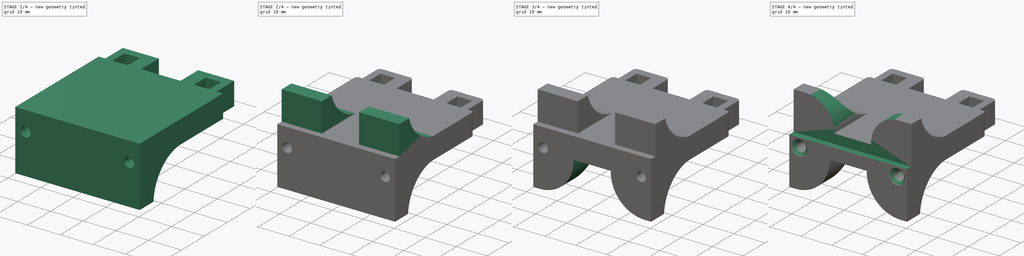
[diagram: build sequence overview — one tinted view per stage of 4, left to right]
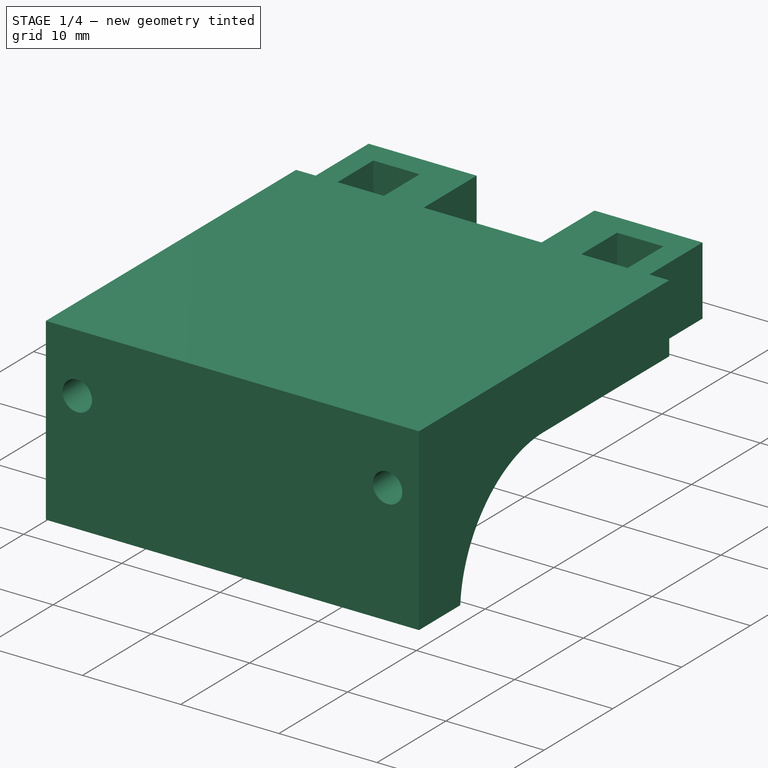
[diagram: stage 1 of 4 — iso view after this stage's code; geometry added in this stage tinted green]
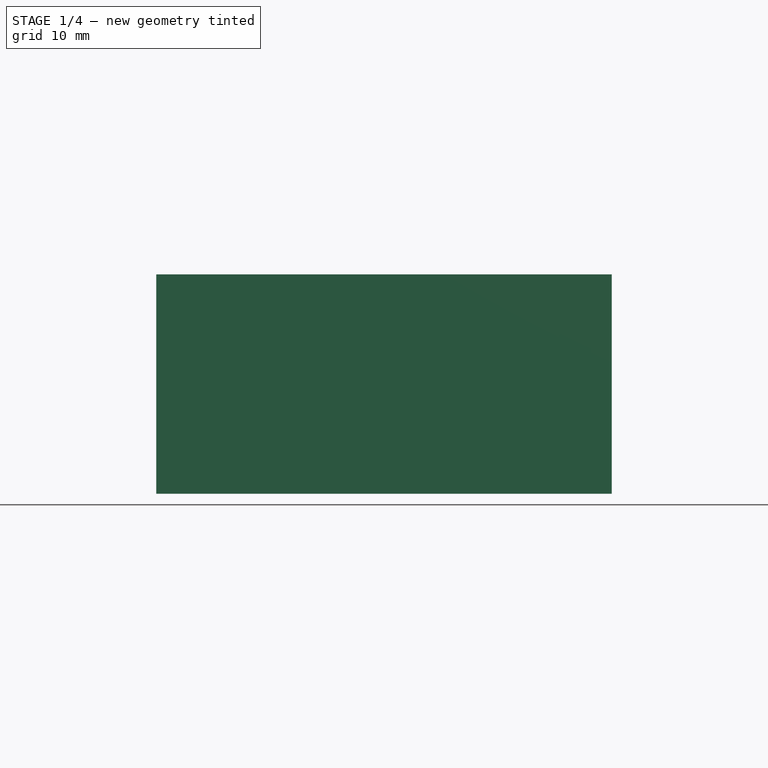
[diagram: stage 1 of 4 — front view after this stage's code; geometry added in this stage tinted green]
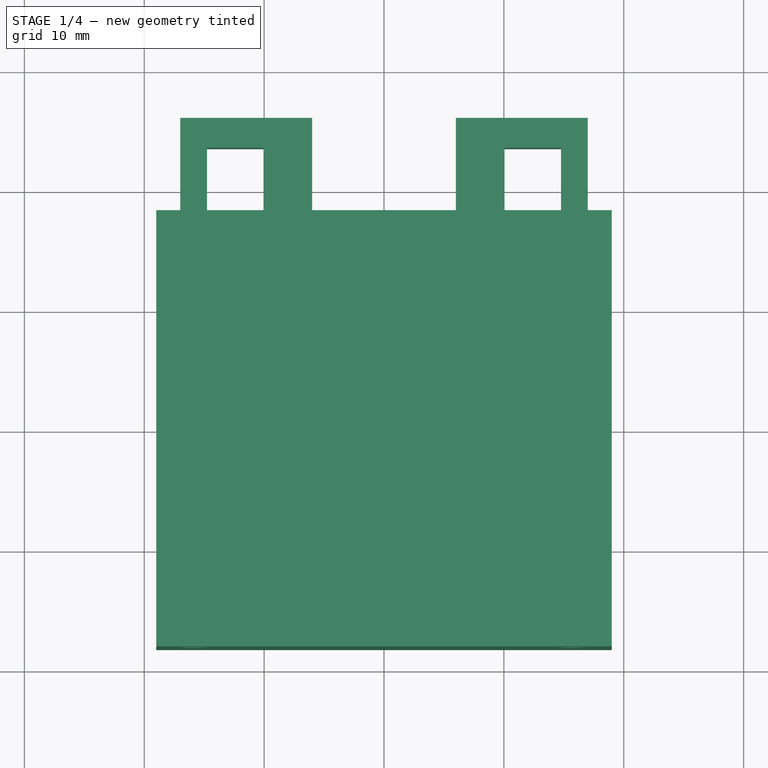
[diagram: stage 1 of 4 — top view after this stage's code; geometry added in this stage tinted green]
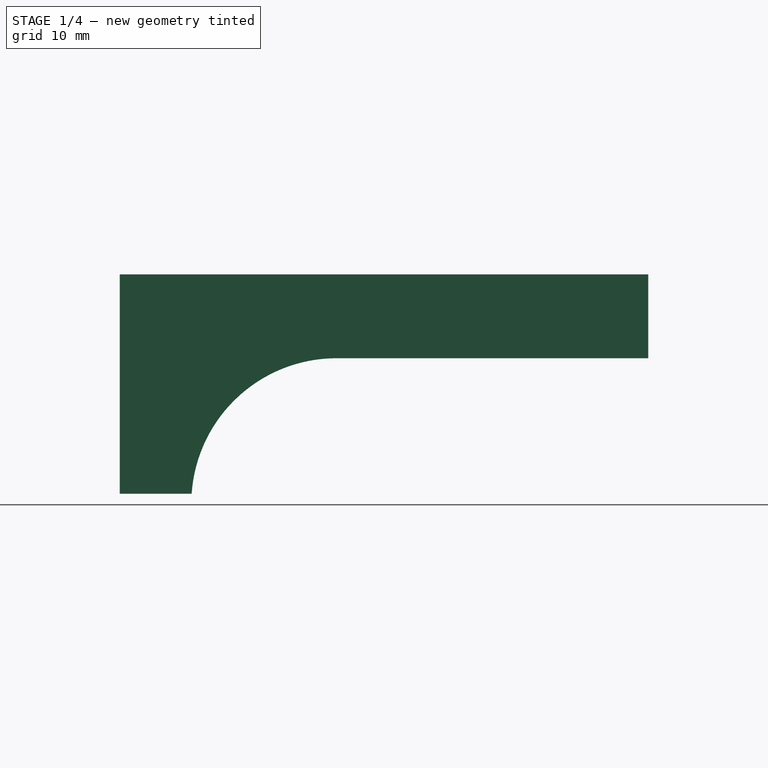
[diagram: stage 1 of 4 — right view after this stage's code; geometry added in this stage tinted green]
FCSTD DOCUMENT  (FreeCAD 1.1R43135 (Git))
Label: k1 beacon rear mount v2
License: All rights reserved
LicenseURL: https://en.wikipedia.org/wiki/All_rights_reserved
objects: Sketcher::SketchObject×6, Part::Feature×5, PartDesign::Pocket×4, App::Point×3, PartDesign::Fillet×3, PartDesign::Pad×2, App::Part×2, PartDesign::SubShapeBinder×1, PartDesign::Mirrored×1, PartDesign::Chamfer×1, PartDesign::Body×1
note: 51 computed .brp shape members not serialized (recipe doc carries the construction recipe); baked Part::Feature solids carry a one-line shape summary decoded from their .brp

FEATURE [Sketcher::SketchObject] Sketch
  ArcFitTolerance = 0
  AttachmentSupport = -> [XY_Plane]
  ExternalTypes = [0]
  FullyConstrained = false
  MakeInternals = false
  MapMode = 5
  sketch-geometry (20):
    g0: LineSegment StartX=-19 StartY=18.195 StartZ=0 EndX=-19 EndY=-18.195 EndZ=0
    g1: LineSegment StartX=-19 StartY=-18.195 StartZ=0 EndX=19 EndY=-18.195 EndZ=0
    g2: LineSegment StartX=19 StartY=-18.195 StartZ=0 EndX=19 EndY=18.195 EndZ=0
    g3: LineSegment StartX=19 StartY=18.195 StartZ=0 EndX=17 EndY=18.195 EndZ=0
    g4: LineSegment StartX=-6 StartY=18.195 StartZ=0 EndX=-6 EndY=25.895 EndZ=0
    g5: LineSegment StartX=-6 StartY=25.895 StartZ=0 EndX=-17 EndY=25.895 EndZ=0
    g6: LineSegment StartX=-17 StartY=25.895 StartZ=0 EndX=-17 EndY=18.195 EndZ=0
    g7: LineSegment StartX=17 StartY=18.195 StartZ=0 EndX=17 EndY=25.895 EndZ=0
    g8: LineSegment StartX=17 StartY=25.895 StartZ=0 EndX=6 EndY=25.895 EndZ=0
    g9: LineSegment StartX=6 StartY=25.895 StartZ=0 EndX=6 EndY=18.195 EndZ=0
    g10: LineSegment StartX=6 StartY=18.195 StartZ=0 EndX=-6 EndY=18.195 EndZ=0
    g11: LineSegment StartX=-17 StartY=18.195 StartZ=0 EndX=-19 EndY=18.195 EndZ=0
    g12: LineSegment StartX=-14.77 StartY=23.395 StartZ=0 EndX=-14.77 EndY=18.195 EndZ=0
    g13: LineSegment StartX=-14.77 StartY=18.195 StartZ=0 EndX=-10.05 EndY=18.195 EndZ=0
    g14: LineSegment StartX=-10.05 StartY=18.195 StartZ=0 EndX=-10.05 EndY=23.395 EndZ=0
    g15: LineSegment StartX=-10.05 StartY=23.395 StartZ=0 EndX=-14.77 EndY=23.395 EndZ=0
    g16: LineSegment StartX=10.05 StartY=23.395 StartZ=0 EndX=10.05 EndY=18.195 EndZ=0
    g17: LineSegment StartX=10.05 StartY=18.195 StartZ=0 EndX=14.77 EndY=18.195 EndZ=0
    g18: LineSegment StartX=14.77 StartY=18.195 StartZ=0 EndX=14.77 EndY=23.395 EndZ=0
    g19: LineSegment StartX=14.77 StartY=23.395 StartZ=0 EndX=10.05 EndY=23.395 EndZ=0
  constraints (59):
    c: Coincident(g0,g1)
    c: Coincident(g1,g2)
    c: Coincident(g2,g3)
    c: Coincident(g11,g0)
    c: Vertical(g0)
    c: Vertical(g2)
    c: Horizontal(g1)
    c: DistanceY(g2,g2) = 36.39
    c: DistanceX(g1,g1) = 38
    c: Symmetric(g1,g0,g-1)
    c: Coincident(g4,g5)
    c: Coincident(g5,g6)
    c: Vertical(g4)
    c: Vertical(g6)
    c: PointOnObject(g6,g11)
    c: Coincident(g7,g8)
    c: Coincident(g8,g9)
    c: Vertical(g7)
    c: Vertical(g9)
    c: PointOnObject(g9,g10)
    c: DistanceX(g8,g8) = 11
    c: Equal(g8,g5)
    c: DistanceX(g4,g9) = 12
    c: Distance(g7,g2) = 2
    c: PointOnObject(g11,g6)
    c: Coincident(g4,g10)
    c: Horizontal(g10)
    c: Horizontal(g11)
    c: Horizontal(g8)
    c: Horizontal(g5)
    c: Horizontal(g4,g8)
    c: Horizontal(g9,g3)
    c: Horizontal(g3,g2)
    c: Horizontal(g4,g6)
    c: Coincident(g12,g13)
    c: Coincident(g13,g14)
    c: Coincident(g14,g15)
    c: Coincident(g15,g12)
    c: Vertical(g12)
    c: Vertical(g14)
    c: Horizontal(g13)
    c: Horizontal(g15)
    c: Coincident(g16,g17)
    c: Coincident(g17,g18)
    c: Coincident(g18,g19)
    c: Coincident(g19,g16)
    c: Vertical(g16)
    c: Vertical(g18)
    c: Horizontal(g17)
    c: Horizontal(g19)
    c: DistanceY(g9,g16) = 0
    c: Equal(g13,g19)
    c: Distance(g19,g19) = 4.72
    c: Equal(g16,g14)
    c: DistanceY(g14,g14) = 5.2
    c: DistanceX(g13,g16) = 20.1
    c: Symmetric(g13,g16,g-2)
    c: Coincident(g3,g7)
    c: DistanceY(g6,g6) = 7.7
FEATURE [PartDesign::Pad] Pad
  Direction = (0,0,1)
  Length = 18.3
  Length2 = 10
  Profile = -> Sketch
  ReferenceAxis = -> Sketch [N_Axis]
  Refine = true
  SideType = 0
  Suppressed = false
  Type = 0
  Type2 = 0
FEATURE [Sketcher::SketchObject] Sketch001
  ArcFitTolerance = 0
  AttachmentSupport = -> [Pad]
  ExternalGeometry = -> [Pad]
  ExternalTypes = [0]
  FullyConstrained = true
  MakeInternals = false
  MapMode = 5
  Placement = pos=(19,0,0) rot=(0.57735,0.57735,0.57735;2.0944rad)
  expr: Constraints[2] = Pad.Length - 7 mm
  sketch-geometry (4):
    g0: LineSegment StartX=25.895 StartY=11.3 StartZ=0 EndX=25.895 EndY=0 EndZ=0
    g1: LineSegment StartX=25.895 StartY=11.3 StartZ=0 EndX=-0.105 EndY=11.3 EndZ=0
    g2: LineSegment StartX=25.895 StartY=0 StartZ=0 EndX=-12.195 EndY=-3e-16 EndZ=0
    g3: ArcOfCircle CenterX=-0.105 CenterY=-0.817615 CenterZ=0 NormalX=0 NormalY=0 NormalZ=1 AngleXU=0 Radius=12.1176 StartAngle=1.5708 EndAngle=3.07407
  constraints (11):
    c: PointOnObject(g0,g-3)
    c: Coincident(g0,g-3)
    c: DistanceY(g0,g0) = 11.3
    c: Coincident(g1,g0)
    c: Horizontal(g1)
    c: DistanceX(g1,g1) = 26
    c: Coincident(g2,g0)
    c: Coincident(g3,g2)
    c: Tangent(g3,g1) = -1.5708
    c: PointOnObject(g2,g-1)
    c: DistanceX(g-5,g2) = 6
FEATURE [PartDesign::Pocket] Pocket
  BaseFeature = -> Pad
  Direction = (-1,0,0)
  Length = 5
  Length2 = 5
  Profile = -> Sketch001
  ReferenceAxis = -> Sketch001 [N_Axis]
  Refine = true
  SideType = 0
  Suppressed = false
  Type = 1
  Type2 = 0
FEATURE [Part::Feature] Part__Feature  label="BeaconG_LP"
  shape: bbox 17 x 17 x 2.6 mm, 4 faces (baked)
FEATURE [Part::Feature] Part__Feature001  label="BeaconG_LP001"
  shape: bbox 18.75 x 18.75 x 20 mm, 4 faces (baked)
FEATURE [Part::Feature] Part__Feature002  label="BeaconG_LP002"
  shape: bbox 38 x 7.762 x 1.1 mm, 10 faces (baked)
FEATURE [Part::Feature] Part__Feature003  label="BeaconG_LP003"
  shape: bbox 38 x 27.5 x 1.611 mm, 18 faces (baked)
FEATURE [App::Part] BeaconG_LP  label="BeaconG_LP004"
  Group = -> [Part__Feature,Part__Feature001,Part__Feature002,Part__Feature003]
  Origin = -> Origin001
FEATURE [Part::Feature] Part__Feature004  label="353620450"
  Placement = pos=(4e-16,-16.1345,4.25) rot=(0,0.707107,0.707107;3.14159rad)
  shape: bbox 10.3 x 5.55 x 11.8 mm, 178 faces (baked)
FEATURE [App::Part] Beacon_Rev_H_Assm  label="Beacon Rev H Assm"
  Group = -> [BeaconG_LP,Part__Feature004]
  Origin = -> Origin002
  Placement = pos=(0,-18.25,8.75) rot=(1,0,0;4.71239rad)
FEATURE [PartDesign::SubShapeBinder] Binder
  BindCopyOnChange = 0
  BindMode = 0
  ClaimChildren = false
  Context = -> Body [Binder.]
  Fuse = false
  MakeFace = true
  OffsetFill = false
  OffsetIntersection = false
  OffsetJoinType = 0
  OffsetOpenResult = false
  PartialLoad = false
  Refine = true
  Relative = true
  Support = -> [Beacon_Rev_H_Assm]
  _Version = 2
FEATURE [Sketcher::SketchObject] Sketch002
  ArcFitTolerance = 1e-06
  AttachmentSupport = -> [Pocket]
  ExternalGeometry = -> [Binder]
  ExternalTypes = [0]
  FullyConstrained = true
  MakeInternals = false
  MapMode = 5
  Placement = pos=(0,-18.195,0) rot=(1,0,0;1.5708rad)
  sketch-geometry (2):
    g0: Circle CenterX=-15.8 CenterY=12.25 CenterZ=0 NormalX=0 NormalY=0 NormalZ=1 AngleXU=0 Radius=1.5
    g1: Circle CenterX=15.8 CenterY=12.25 CenterZ=0 NormalX=0 NormalY=0 NormalZ=1 AngleXU=0 Radius=1.5
  constraints (4):
    c: Coincident(g0,g-3)
    c: Coincident(g1,g-4)
    c: Equal(g1,g0)
    c: Diameter(g0) = 3
FEATURE [PartDesign::Pocket] Pocket001
  BaseFeature = -> Pocket
  Direction = (0,1,-2e-16)
  Length = 5
  Length2 = 5
  Profile = -> Sketch002
  ReferenceAxis = -> Sketch002 [N_Axis]
  Refine = true
  SideType = 0
  Suppressed = false
  Type = 0
  Type2 = 0
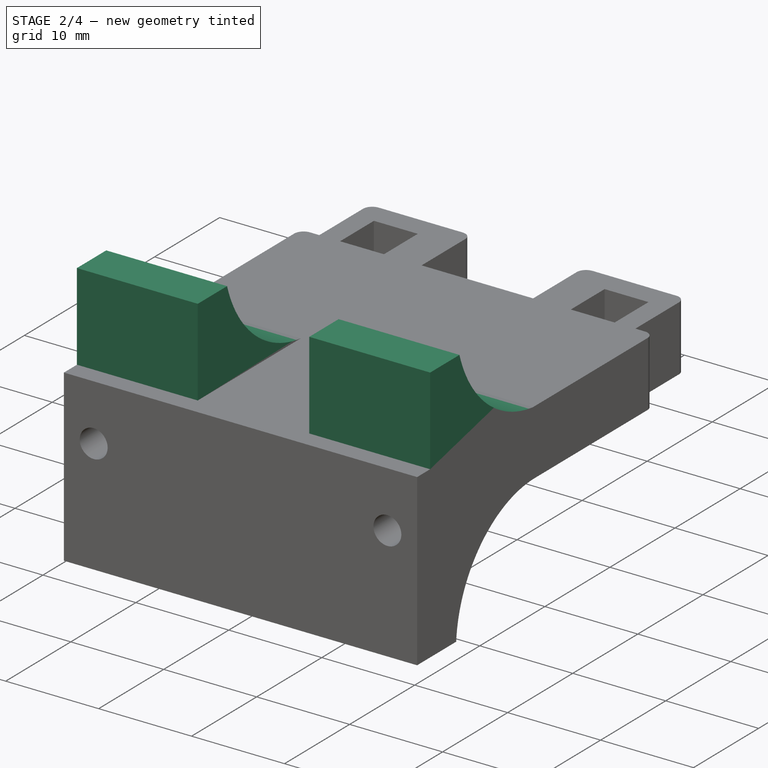
[diagram: stage 2 of 4 — iso view after this stage's code; geometry added in this stage tinted green]
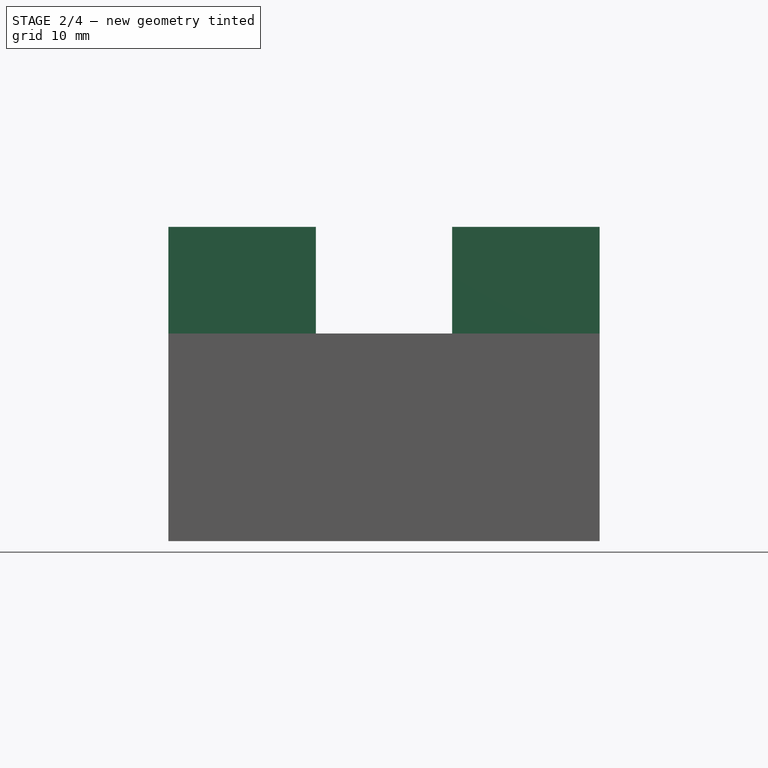
[diagram: stage 2 of 4 — front view after this stage's code; geometry added in this stage tinted green]
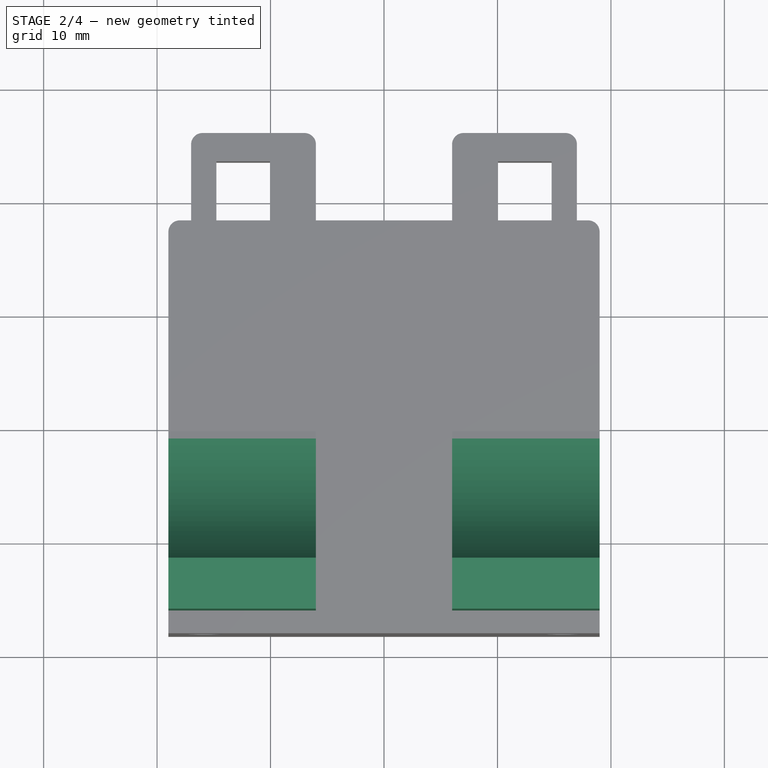
[diagram: stage 2 of 4 — top view after this stage's code; geometry added in this stage tinted green]
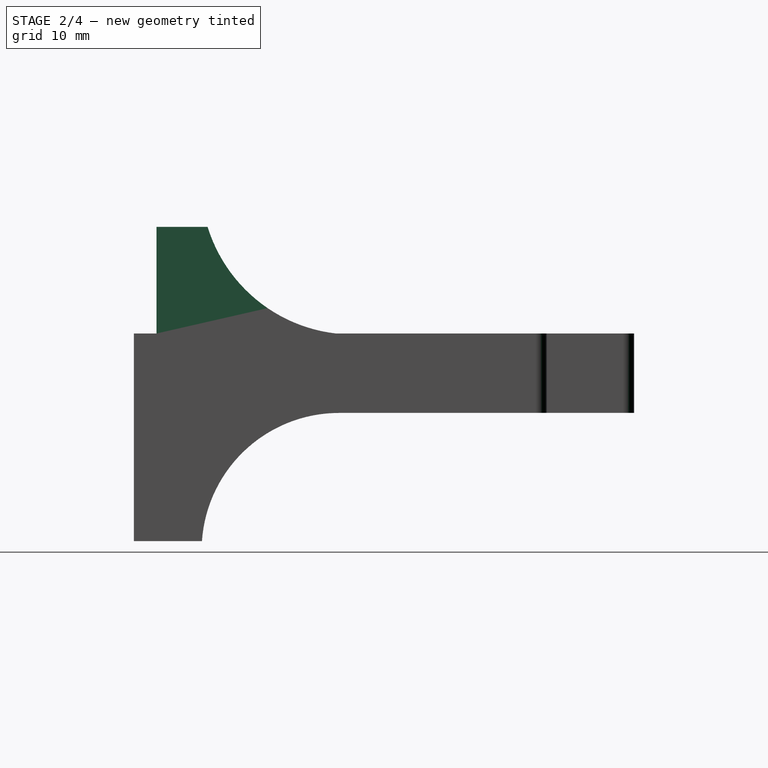
[diagram: stage 2 of 4 — right view after this stage's code; geometry added in this stage tinted green]
FEATURE [Sketcher::SketchObject] Sketch003
  ArcFitTolerance = 1e-06
  AttachmentSupport = -> [Pocket001]
  ExternalGeometry = -> [Pocket001]
  ExternalTypes = [0]
  FullyConstrained = false
  MakeInternals = false
  MapMode = 5
  Placement = pos=(-19,0,0) rot=(0.57735,-0.57735,-0.57735;2.0944rad)
  sketch-geometry (4):
    g0: LineSegment StartX=16.195 StartY=18.2694 StartZ=0 EndX=0.0935402 EndY=18.2694 EndZ=0
    g1: LineSegment StartX=16.195 StartY=18.2694 StartZ=0 EndX=16.195 EndY=27.6981 EndZ=0
    g2: LineSegment StartX=16.195 StartY=27.6981 StartZ=0 EndX=11.695 EndY=27.6981 EndZ=0
    g3: ArcOfCircle CenterX=-1.14709 CenterY=31.6477 CenterZ=0 NormalX=0 NormalY=0 NormalZ=1 AngleXU=0 Radius=13.4357 StartAngle=4.80486 EndAngle=5.98482
  constraints (9):
    c: Vertical(g1)
    c: Coincident(g2,g1)
    c: Horizontal(g2)
    c: DistanceX(g2,g2) = 4.5
    c: Coincident(g3,g2)
    c: Coincident(g3,g0)
    c: Horizontal(g0)
    c: Coincident(g1,g0)
    c: DistanceX(g0,g-4) = 2
FEATURE [PartDesign::Pad] Pad001
  BaseFeature = -> Pocket001
  Direction = (-1,0,0)
  Length = 13
  Length2 = 10
  Profile = -> Sketch003
  ReferenceAxis = -> Sketch003 [N_Axis]
  Refine = true
  Reversed = true
  SideType = 0
  Suppressed = false
  Type = 0
  Type2 = 0
FEATURE [PartDesign::Mirrored] Mirrored
  BaseFeature = -> Pad001
  MirrorPlane = -> YZ_Plane
  Originals = -> [Pad001]
  Refine = true
  Suppressed = false
  TransformMode = 0
FEATURE [App::Point] Origin003  label="Origin"
  Role = Origin
FEATURE [App::Point] Origin004  label="Origin"
  Role = Origin
FEATURE [App::Point] Origin005  label="Origin"
  Role = Origin
FEATURE [PartDesign::Fillet] Fillet
  Base = -> Mirrored [Edge40,Edge42,Edge48,Edge21,Edge25,Edge36]
  BaseFeature = -> Mirrored
  Radius = 1
  Refine = true
  SupportTransform = false
  Suppressed = false
  UseAllEdges = false
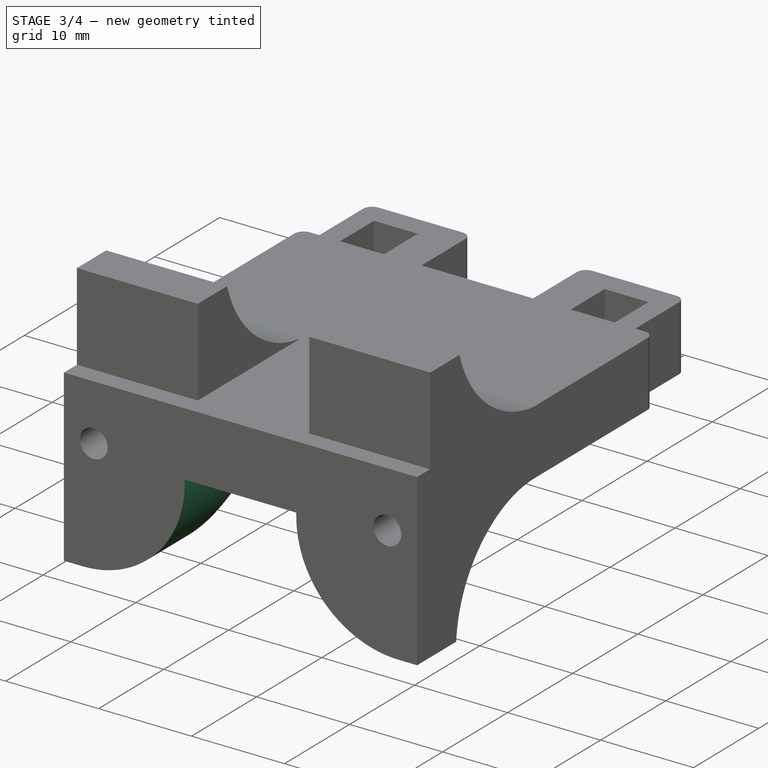
[diagram: stage 3 of 4 — iso view after this stage's code; geometry added in this stage tinted green]
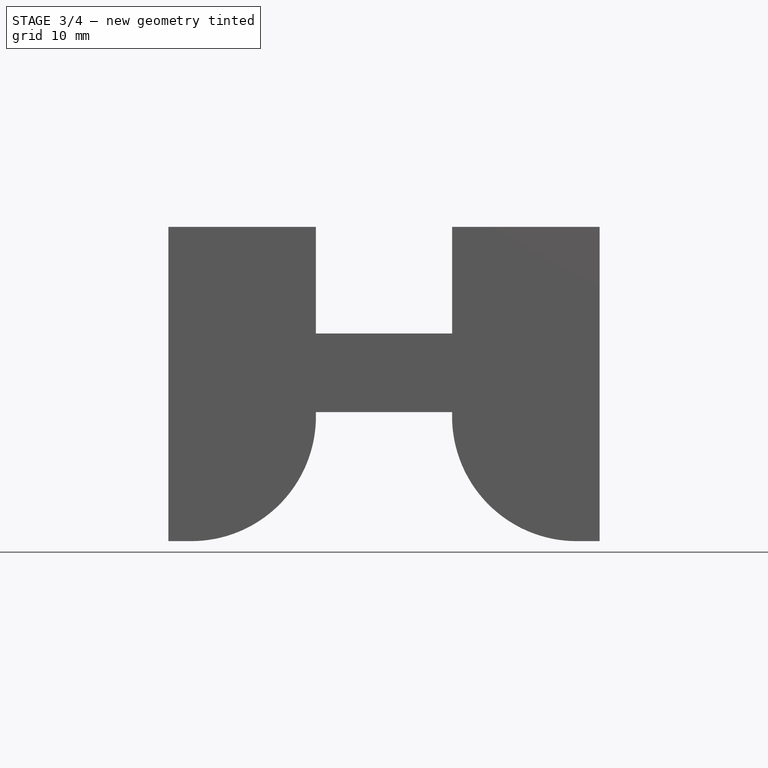
[diagram: stage 3 of 4 — front view after this stage's code; geometry added in this stage tinted green]
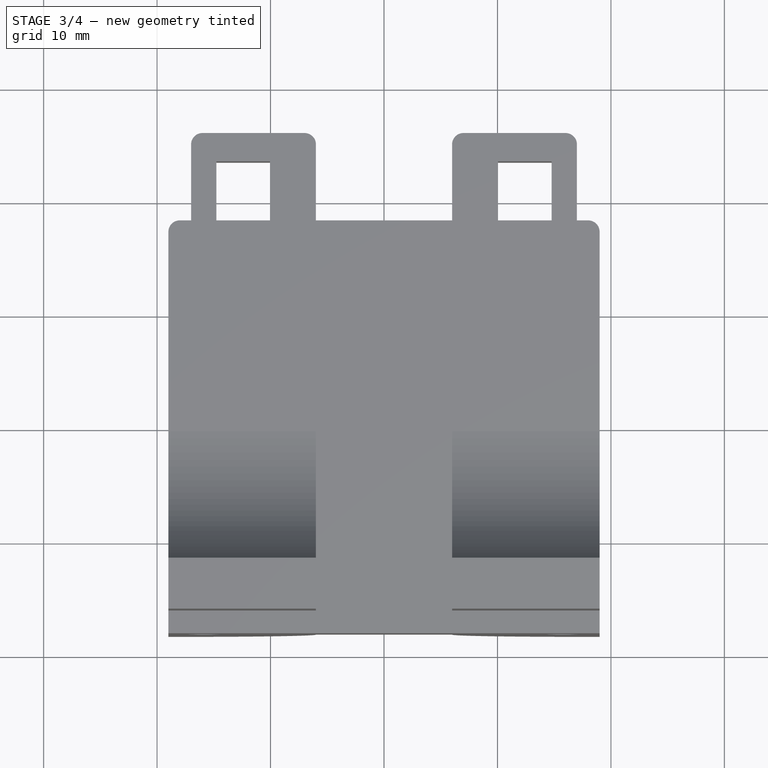
[diagram: stage 3 of 4 — top view after this stage's code; geometry added in this stage tinted green]
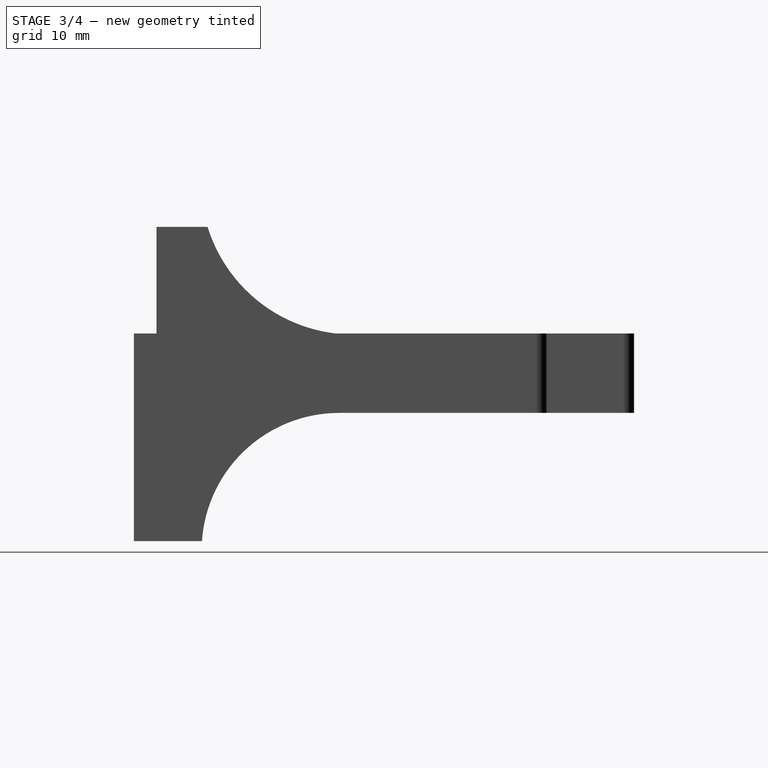
[diagram: stage 3 of 4 — right view after this stage's code; geometry added in this stage tinted green]
FEATURE [Sketcher::SketchObject] Sketch005
  ArcFitTolerance = 1e-06
  AttachmentSupport = -> [Fillet]
  ExternalGeometry = -> [Fillet]
  ExternalTypes = [0,0]
  FullyConstrained = false
  MakeInternals = false
  MapMode = 5
  Placement = pos=(0,18.195,0) rot=(0,0.707107,0.707107;3.14159rad)
  sketch-geometry (4):
    g0: LineSegment StartX=-6 StartY=0 StartZ=0 EndX=6 EndY=0 EndZ=0
    g1: LineSegment StartX=6 StartY=0 StartZ=0 EndX=6 EndY=11.3692 EndZ=0
    g2: LineSegment StartX=6 StartY=11.3692 StartZ=0 EndX=-6 EndY=11.3692 EndZ=0
    g3: LineSegment StartX=-6 StartY=11.3692 StartZ=0 EndX=-6 EndY=0 EndZ=0
  constraints (11):
    c: Coincident(g0,g1)
    c: Coincident(g1,g2)
    c: Coincident(g2,g3)
    c: Coincident(g3,g0)
    c: Horizontal(g0)
    c: Horizontal(g2)
    c: Vertical(g1)
    c: Vertical(g3)
    c: PointOnObject(g0,g-1)
    c: Vertical(g-3,g2)
    c: Vertical(g-4,g1)
FEATURE [PartDesign::Pocket] Pocket002
  BaseFeature = -> Fillet
  Direction = (0,-1,2e-16)
  Length = 5
  Length2 = 5
  Profile = -> Sketch005
  ReferenceAxis = -> Sketch005 [N_Axis]
  Refine = true
  SideType = 0
  Suppressed = false
  Type = 1
  Type2 = 0
FEATURE [PartDesign::Fillet] Fillet001
  Base = -> Pocket002 [Edge118,Edge68]
  BaseFeature = -> Pocket002
  Radius = 11
  Refine = true
  SupportTransform = false
  Suppressed = false
  UseAllEdges = false
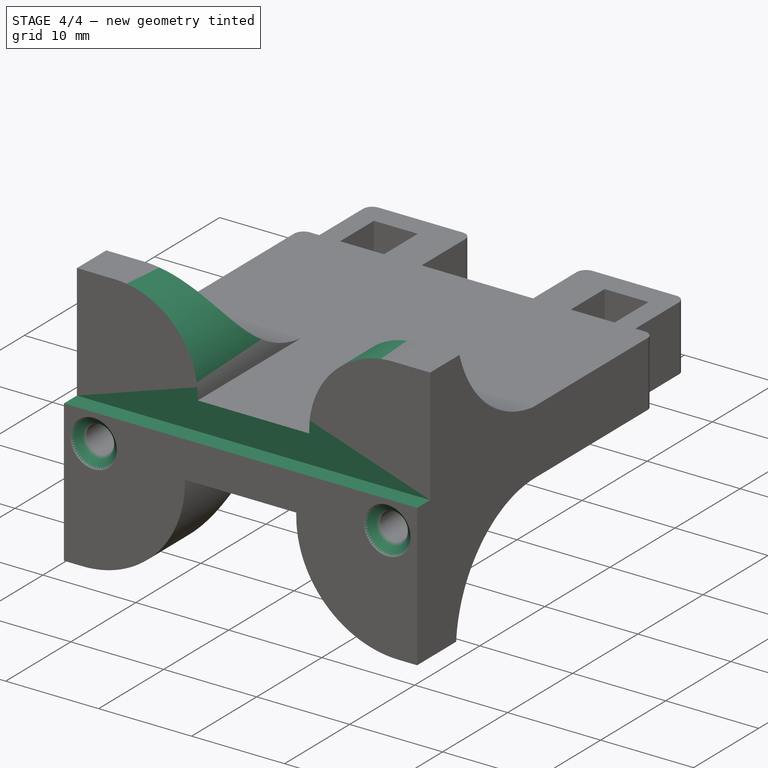
[diagram: stage 4 of 4 — iso view after this stage's code; geometry added in this stage tinted green]
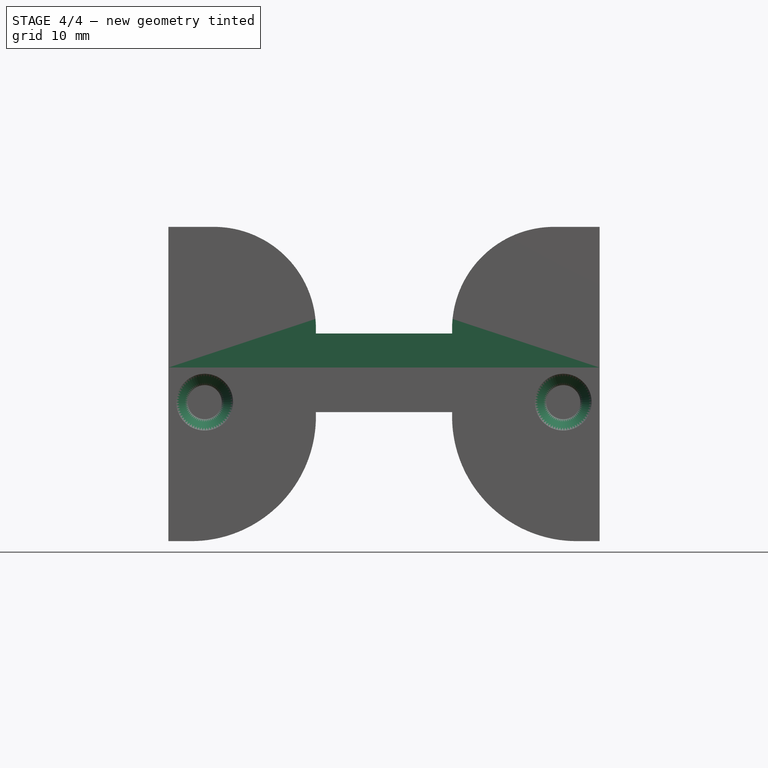
[diagram: stage 4 of 4 — front view after this stage's code; geometry added in this stage tinted green]
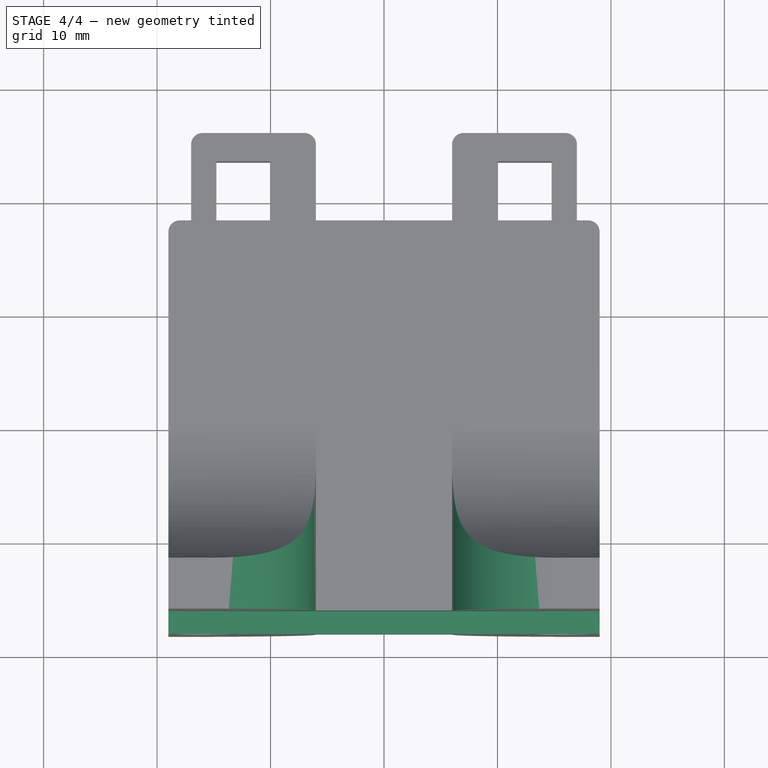
[diagram: stage 4 of 4 — top view after this stage's code; geometry added in this stage tinted green]
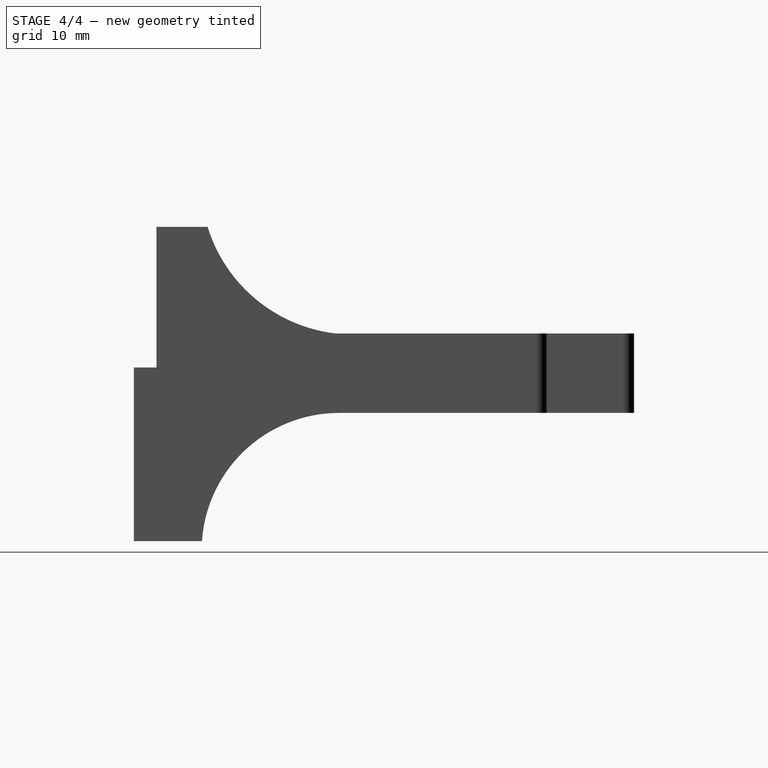
[diagram: stage 4 of 4 — right view after this stage's code; geometry added in this stage tinted green]
FEATURE [PartDesign::Fillet] Fillet002
  Base = -> Fillet001 [Edge122,Edge77]
  BaseFeature = -> Fillet001
  Radius = 9
  Refine = true
  SupportTransform = false
  Suppressed = false
  UseAllEdges = false
FEATURE [PartDesign::Chamfer] Chamfer
  Angle = 45
  Base = -> Fillet002 [Edge76,Edge77]
  BaseFeature = -> Fillet002
  ChamferType = 0
  FlipDirection = false
  Refine = true
  Size = 1
  Size2 = 1
  SupportTransform = false
  Suppressed = false
  UseAllEdges = false
FEATURE [Sketcher::SketchObject] Sketch006
  ArcFitTolerance = 1e-06
  AttachmentSupport = -> [Chamfer]
  ExternalGeometry = -> [Chamfer]
  ExternalTypes = [0,0]
  FullyConstrained = true
  MakeInternals = false
  MapMode = 5
  Placement = pos=(-19,0,0) rot=(0.57735,-0.57735,-0.57735;2.0944rad)
  sketch-geometry (4):
    g0: LineSegment StartX=16.195 StartY=18.3 StartZ=0 EndX=16.195 EndY=15.3 EndZ=0
    g1: LineSegment StartX=16.195 StartY=15.3 StartZ=0 EndX=18.195 EndY=15.3 EndZ=0
    g2: LineSegment StartX=18.195 StartY=15.3 StartZ=0 EndX=18.195 EndY=18.3 EndZ=0
    g3: LineSegment StartX=18.195 StartY=18.3 StartZ=0 EndX=16.195 EndY=18.3 EndZ=0
  constraints (11):
    c: Coincident(g0,g1)
    c: Coincident(g1,g2)
    c: Coincident(g2,g3)
    c: Coincident(g3,g0)
    c: Vertical(g0)
    c: Vertical(g2)
    c: Horizontal(g1)
    c: Horizontal(g3)
    c: Coincident(g0,g-3)
    c: PointOnObject(g1,g-4)
    c: DistanceY(g2,g2) = 3
FEATURE [PartDesign::Pocket] Pocket003
  BaseFeature = -> Chamfer
  Direction = (1,0,0)
  Length = 5
  Length2 = 5
  Profile = -> Sketch006
  ReferenceAxis = -> Sketch006 [N_Axis]
  Refine = true
  SideType = 0
  Suppressed = false
  Type = 1
  Type2 = 0
FEATURE [PartDesign::Body] Body
  AllowCompound = false
  Group = -> [Sketch,Pad,Sketch001,Pocket,Sketch002,Binder,Pocket001,Sketch003,Pad001,Mirrored,Fillet,Sketch005,Pocket002,Fillet001,Fillet002,Chamfer,Sketch006,Pocket003]
  Origin = -> Origin
  Tip = -> Pocket003
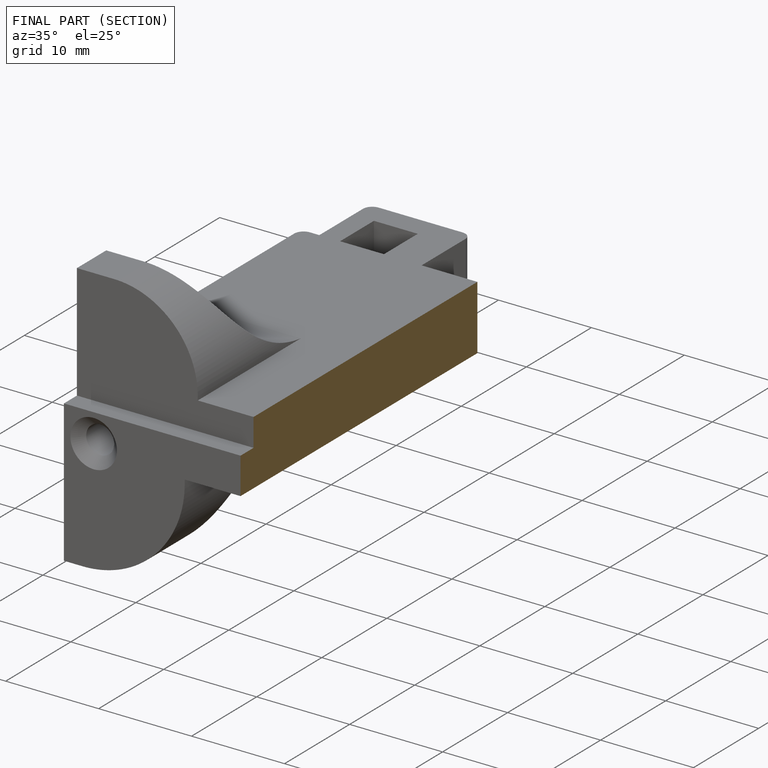
[diagram: finished part — half-section view (interior)]
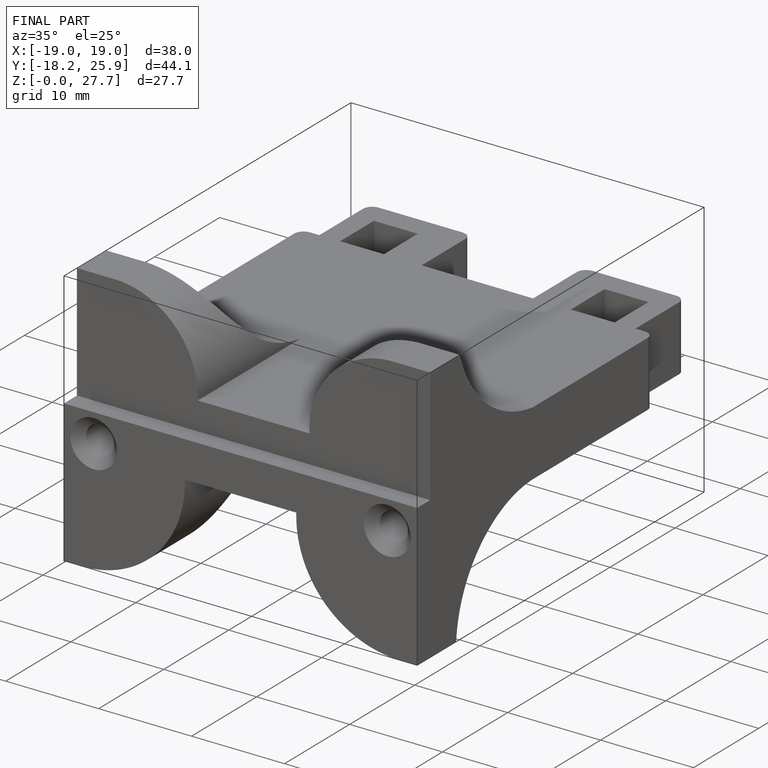
[diagram: finished part — iso view with bounding-box wireframe]
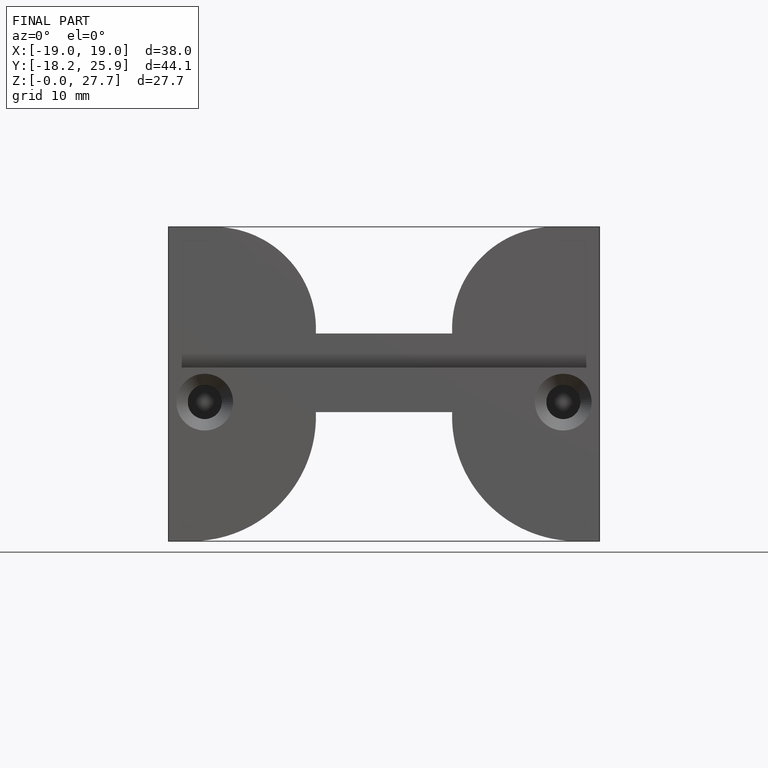
[diagram: finished part — front view with bounding-box wireframe]
